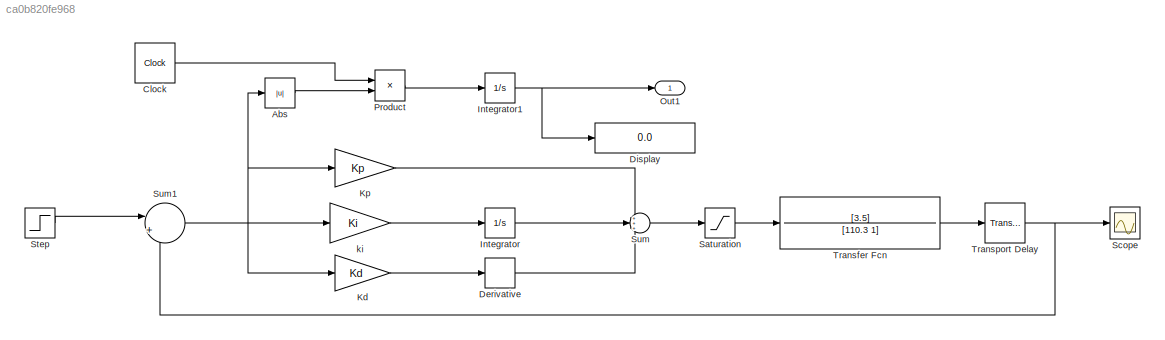
MODEL slx_ca0b820fe968
KIND model
CONFIG AbsTol = auto
CONFIG EnableMultiTasking = off
CONFIG FixedStep = auto
CONFIG MaxStep = auto
CONFIG MinStep = auto
CONFIG RelTol = 1e-3
CONFIG SampleTimeConstraint = Unconstrained
CONFIG Solver = FixedStepAuto
CONFIG SolverName = FixedStepAuto
CONFIG StartTime = 0.0
CONFIG StopTime = 100
BLOCK [Abs] Abs
  SaturateOnIntegerOverflow = off
BLOCK [Clock] Clock
BLOCK [Derivative] Derivative
BLOCK [Display] Display
  Decimation = 1
  Format = long
  Ports = [1]
BLOCK [Integrator] Integrator
  Ports = [1, 1]
BLOCK [Integrator] Integrator1
  Ports = [1, 1]
BLOCK [Gain] Kd
  Gain = Kd
BLOCK [Gain] Kp
  Gain = Kp
BLOCK [Outport] Out1
BLOCK [Product] Product
  Ports = [2, 1]
BLOCK [Saturate] Saturation
  LowerLimit = -5
  UpperLimit = 5
BLOCK [Scope] Scope
  Floating = off
  NumInputPorts = 1
  Ports = [1]
  ScopeSpecificationString = Simulink.scopes.TimeScopeBlockCfg('CurrentConfiguration', extmgr.ConfigurationSet(extmgr.Configuration('Core','General UI',true),extmgr.Configuration('Core','Source UI',true),extmgr.Configuration('Sources','WiredSimulink',true),extmgr.Configuration('Visuals','Time Domain',true,'SerializedDisplays',{struct('MinYLimReal','-0.183','MaxYLimReal','1.64701','YLabelReal','','MinYLimMag','0.00000','MaxYLi...<+1386ch>
BLOCK [Step] Step
  SampleTime = 0
  Time = 0
BLOCK [Sum] Sum
  Inputs = +++
  Ports = [3, 1]
BLOCK [Sum] Sum1
  Inputs = |+-
  Ports = [2, 1]
BLOCK [TransferFcn] Transfer Fcn
  Denominator = [110.3 1]
  Numerator = [3.5]
BLOCK [TransportDelay] Transport Delay
  BufferSize = 2048
  DelayTime = 2
  Ports = [1, 1]
BLOCK [Gain] ki
  Gain = Ki
LINE Abs:1 -> Product:2
LINE Clock:1 -> Product:1
LINE Derivative:1 -> Sum:3
NET Integrator1:1 -> Display:1, Out1:1
LINE Integrator:1 -> Sum:2
LINE Kd:1 -> Derivative:1
LINE Kp:1 -> Sum:1
LINE Product:1 -> Integrator1:1
LINE Saturation:1 -> Transfer Fcn:1
LINE Step:1 -> Sum1:1
NET Sum1:1 -> Abs:1, Kd:1, Kp:1, ki:1
LINE Sum:1 -> Saturation:1
LINE Transfer Fcn:1 -> Transport Delay:1
NET Transport Delay:1 -> Scope:1, Sum1:2
LINE ki:1 -> Integrator:1
note: NET lines group one-source signal fan-out (src -> all destinations, sorted); 1:1 wires keep LINE
